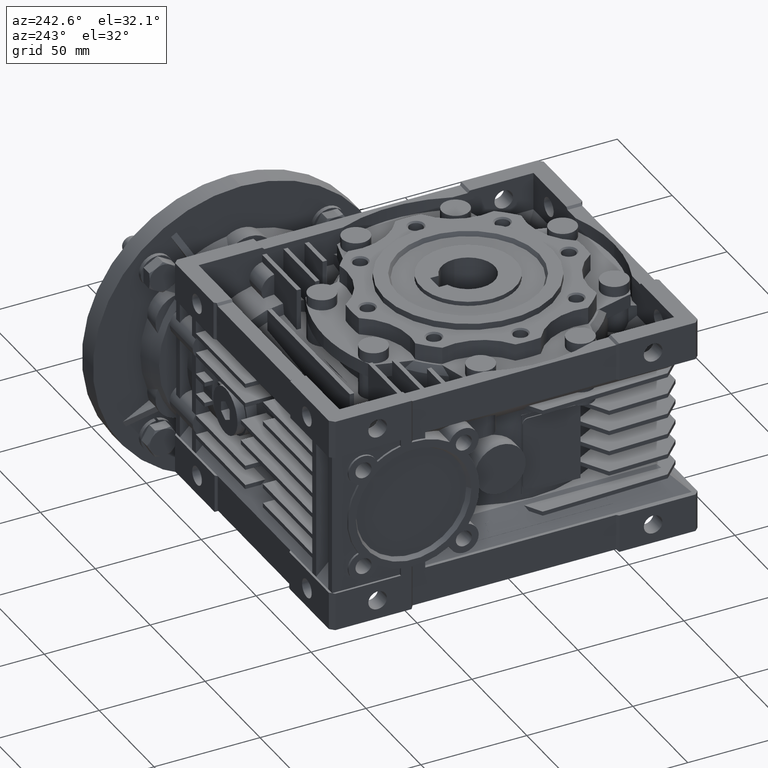
[diagram: clean part render]
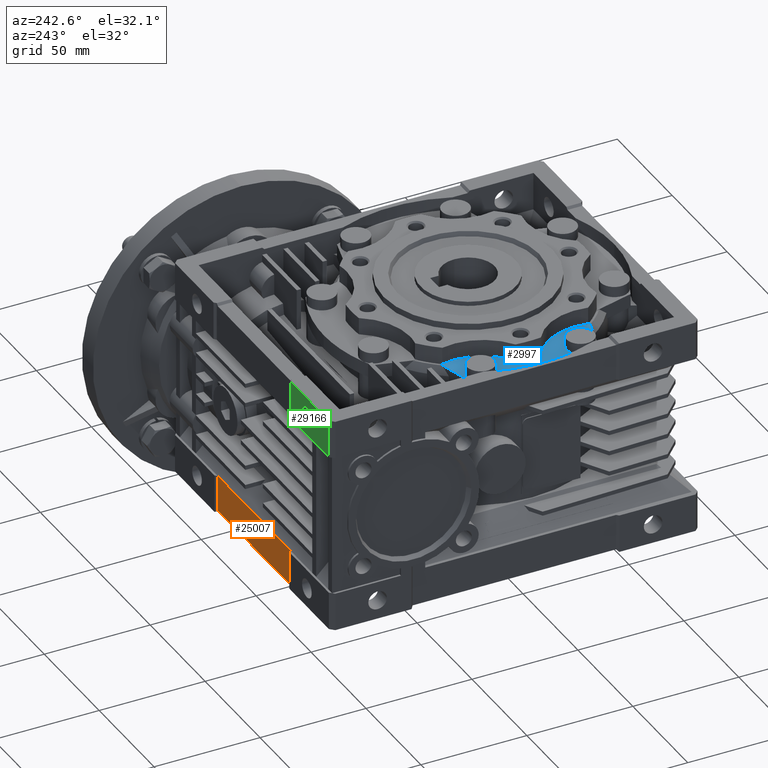
[diagram: same view with three faces highlighted in distinct colors, each labeled with its STEP entity id]
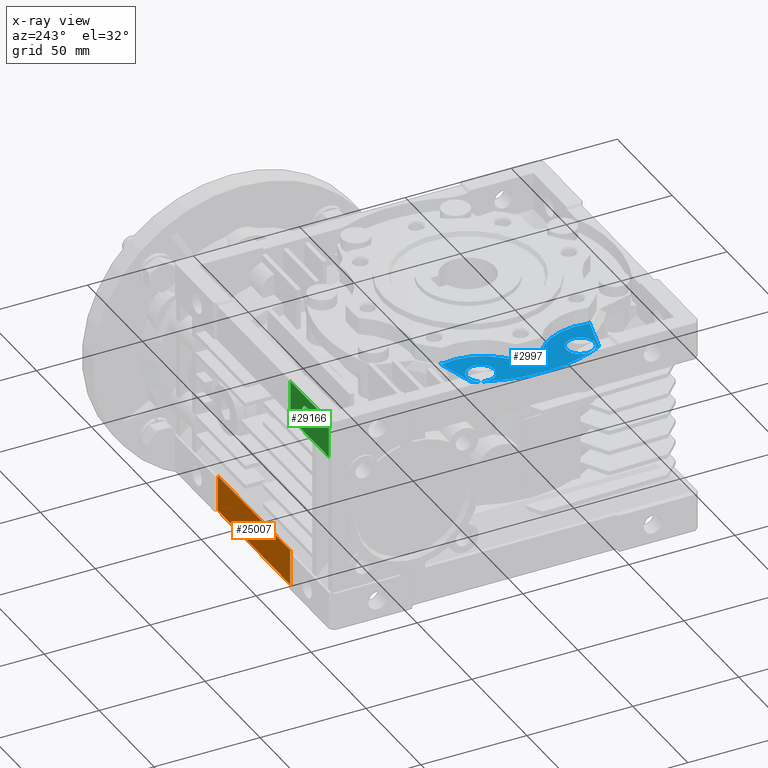
[diagram: x-ray of the same camera — body ghosted, the three highlighted faces saturated]
A machine part, auxiliary view with three faces highlighted in distinct colors.
The next image is the same camera in x-ray (body ghosted, the three faces saturated) — at least one of them is partly hidden behind the body in this view.
Their STEP definitions:

[orange] entity #25007 — the highlighted planar face has unit normal (-0, 1, 0).
#167 = EDGE_LOOP ( 'NONE', ( #5798, #12749, #15347, #39549 ) ) ;
#687 = CARTESIAN_POINT ( 'NONE',  ( -33.00000000000000000, 101.0000000000000000, -33.50000000000000000 ) ) ;
#1028 = LINE ( 'NONE', #38206, #40008 ) ;
#1096 = LINE ( 'NONE', #27349, #18338 ) ;
#2911 = CARTESIAN_POINT ( 'NONE',  ( 33.00000000000000000, 101.0000000000000000, -50.50000000000000000 ) ) ;
#3755 = VECTOR ( 'NONE', #34079, 1000.000000000000000 ) ;
#5208 = VERTEX_POINT ( 'NONE', #16098 ) ;
#5798 = ORIENTED_EDGE ( 'NONE', *, *, #23719, .F. ) ;
#6610 = LINE ( 'NONE', #32930, #8756 ) ;
#8756 = VECTOR ( 'NONE', #23086, 1000.000000000000000 ) ;
#9776 = AXIS2_PLACEMENT_3D ( 'NONE', #25798, #11739, #15325 ) ;
#11739 = DIRECTION ( 'NONE',  ( -0.000000000000000000, 1.000000000000000000, 0.000000000000000000 ) ) ;
#12177 = PLANE ( 'NONE',  #9776 ) ;
#12749 = ORIENTED_EDGE ( 'NONE', *, *, #19511, .T. ) ;
#13687 = VERTEX_POINT ( 'NONE', #2911 ) ;
#15325 = DIRECTION ( 'NONE',  ( 1.000000000000000000, 0.000000000000000000, 0.000000000000000000 ) ) ;
#15347 = ORIENTED_EDGE ( 'NONE', *, *, #20621, .T. ) ;
#15893 = VERTEX_POINT ( 'NONE', #37003 ) ;
#16098 = CARTESIAN_POINT ( 'NONE',  ( 33.00000000000000000, 101.0000000000000000, -33.50000000000000000 ) ) ;
#18338 = VECTOR ( 'NONE', #27142, 1000.000000000000000 ) ;
#19511 = EDGE_CURVE ( 'NONE', #42089, #5208, #1028, .T. ) ;
#20621 = EDGE_CURVE ( 'NONE', #5208, #13687, #6610, .T. ) ;
#23086 = DIRECTION ( 'NONE',  ( 0.000000000000000000, 0.000000000000000000, -1.000000000000000000 ) ) ;
#23719 = EDGE_CURVE ( 'NONE', #42089, #15893, #1096, .T. ) ;
#25007 = ADVANCED_FACE ( 'NONE', ( #42952 ), #12177, .T. ) ;
#25798 = CARTESIAN_POINT ( 'NONE',  ( 0.000000000000000000, 101.0000000000000000, 0.000000000000000000 ) ) ;
#27142 = DIRECTION ( 'NONE',  ( 0.000000000000000000, 0.000000000000000000, -1.000000000000000000 ) ) ;
#27349 = CARTESIAN_POINT ( 'NONE',  ( -33.00000000000000000, 101.0000000000000000, -33.50000000000000000 ) ) ;
#32930 = CARTESIAN_POINT ( 'NONE',  ( 33.00000000000000000, 101.0000000000000000, 0.000000000000000000 ) ) ;
#34079 = DIRECTION ( 'NONE',  ( 1.000000000000000000, 0.000000000000000000, 0.000000000000000000 ) ) ;
#34294 = LINE ( 'NONE', #34946, #3755 ) ;
#34946 = CARTESIAN_POINT ( 'NONE',  ( -33.00000000000000000, 101.0000000000000000, -50.50000000000000000 ) ) ;
#35336 = EDGE_CURVE ( 'NONE', #15893, #13687, #34294, .T. ) ;
#37003 = CARTESIAN_POINT ( 'NONE',  ( -33.00000000000000000, 101.0000000000000000, -50.50000000000000000 ) ) ;
#38206 = CARTESIAN_POINT ( 'NONE',  ( 0.000000000000000000, 101.0000000000000000, -33.50000000000000000 ) ) ;
#39549 = ORIENTED_EDGE ( 'NONE', *, *, #35336, .F. ) ;
#40008 = VECTOR ( 'NONE', #41991, 1000.000000000000000 ) ;
#41991 = DIRECTION ( 'NONE',  ( 1.000000000000000000, 0.000000000000000000, 0.000000000000000000 ) ) ;
#42089 = VERTEX_POINT ( 'NONE', #687 ) ;
#42952 = FACE_OUTER_BOUND ( 'NONE', #167, .T. ) ;

[blue] entity #2997 — the highlighted planar face has unit normal (0, 0, -1).
#341 = AXIS2_PLACEMENT_3D ( 'NONE', #14790, #28847, #31739 ) ;
#679 = VERTEX_POINT ( 'NONE', #11748 ) ;
#755 = LINE ( 'NONE', #21887, #5604 ) ;
#914 = CARTESIAN_POINT ( 'NONE',  ( 0.000000000000000000, 0.000000000000000000, 45.00000000000000000 ) ) ;
#1072 = CIRCLE ( 'NONE', #36647, 68.09999999999999432 ) ;
#2065 = DIRECTION ( 'NONE',  ( 0.000000000000000000, -1.000000000000000000, 0.000000000000000000 ) ) ;
#2855 = EDGE_CURVE ( 'NONE', #29941, #10582, #37759, .T. ) ;
#2997 = ADVANCED_FACE ( 'NONE', ( #17838, #31442, #14493 ), #28083, .F. ) ;
#3102 = VERTEX_POINT ( 'NONE', #8259 ) ;
#3226 = CARTESIAN_POINT ( 'NONE',  ( -42.18039281904054860, -35.29609697447340011, 45.00000000000000000 ) ) ;
#5037 = ORIENTED_EDGE ( 'NONE', *, *, #9739, .F. ) ;
#5604 = VECTOR ( 'NONE', #7409, 1000.000000000000227 ) ;
#5944 = DIRECTION ( 'NONE',  ( 0.000000000000000000, 1.000000000000000000, 0.000000000000000000 ) ) ;
#6746 = CARTESIAN_POINT ( 'NONE',  ( -61.01268310769489744, -30.25000000000000000, 45.00000000000000000 ) ) ;
#6811 = CIRCLE ( 'NONE', #11758, 27.00000000000000355 ) ;
#6837 = CARTESIAN_POINT ( 'NONE',  ( -56.81859124944409700, -23.53503109045299979, 45.00000000000000000 ) ) ;
#6839 = CARTESIAN_POINT ( 'NONE',  ( 1.387778780781449935E-14, -1.908195823574490013E-14, 45.00000000000000000 ) ) ;
#7202 = ORIENTED_EDGE ( 'NONE', *, *, #33687, .F. ) ;
#7409 = DIRECTION ( 'NONE',  ( 0.9659258262890680902, 0.2588190451025215166, 0.000000000000000000 ) ) ;
#8259 = CARTESIAN_POINT ( 'NONE',  ( -42.90242775894350302, 34.41484697610369636, 45.00000000000000000 ) ) ;
#8296 = CARTESIAN_POINT ( 'NONE',  ( -42.90242775894350302, -34.41484697610369636, 45.00000000000000000 ) ) ;
#8416 = CARTESIAN_POINT ( 'NONE',  ( -56.81859124944409700, 23.53503109045299979, 45.00000000000000000 ) ) ;
#9431 = DIRECTION ( 'NONE',  ( -1.027984282060329962E-15, -1.000000000000000000, 0.000000000000000000 ) ) ;
#9693 = DIRECTION ( 'NONE',  ( 0.000000000000000000, 0.000000000000000000, 1.000000000000000000 ) ) ;
#9739 = EDGE_CURVE ( 'NONE', #25859, #679, #755, .T. ) ;
#10582 = VERTEX_POINT ( 'NONE', #3226 ) ;
#10831 = AXIS2_PLACEMENT_3D ( 'NONE', #6837, #16867, #44027 ) ;
#11426 = EDGE_CURVE ( 'NONE', #40493, #25859, #1072, .T. ) ;
#11495 = ORIENTED_EDGE ( 'NONE', *, *, #2855, .F. ) ;
#11624 = CARTESIAN_POINT ( 'NONE',  ( -56.81859124944409700, -17.03503109045300334, 45.00000000000000000 ) ) ;
#11748 = CARTESIAN_POINT ( 'NONE',  ( -42.18039281904060545, 35.29609697447340011, 45.00000000000000000 ) ) ;
#11758 = AXIS2_PLACEMENT_3D ( 'NONE', #20523, #17196, #9431 ) ;
#12569 = CARTESIAN_POINT ( 'NONE',  ( 0.000000000000000000, 0.000000000000000000, 45.00000000000000000 ) ) ;
#12986 = VERTEX_POINT ( 'NONE', #17446 ) ;
#13928 = DIRECTION ( 'NONE',  ( 1.776356839400250070E-15, 1.000000000000000000, 0.000000000000000000 ) ) ;
#14493 = FACE_BOUND ( 'NONE', #18566, .T. ) ;
#14778 = EDGE_LOOP ( 'NONE', ( #5037, #41531, #20740, #11495, #36213, #42255, #40126, #7202 ) ) ;
#14790 = CARTESIAN_POINT ( 'NONE',  ( -69.29096493834650516, 28.70125742738170160, 45.00000000000000000 ) ) ;
#14940 = CARTESIAN_POINT ( 'NONE',  ( 0.000000000000000000, 0.000000000000000000, 45.00000000000000000 ) ) ;
#15752 = AXIS2_PLACEMENT_3D ( 'NONE', #42353, #32344, #2065 ) ;
#16465 = AXIS2_PLACEMENT_3D ( 'NONE', #25972, #9693, #5944 ) ;
#16867 = DIRECTION ( 'NONE',  ( 0.000000000000000000, 0.000000000000000000, 1.000000000000000000 ) ) ;
#16912 = CIRCLE ( 'NONE', #43239, 6.499999999999999112 ) ;
#17196 = DIRECTION ( 'NONE',  ( 0.000000000000000000, 0.000000000000000000, 1.000000000000000000 ) ) ;
#17446 = CARTESIAN_POINT ( 'NONE',  ( -54.67156926801519745, -6.001625927414619532, 45.00000000000000000 ) ) ;
#17838 = FACE_OUTER_BOUND ( 'NONE', #14778, .T. ) ;
#18191 = CARTESIAN_POINT ( 'NONE',  ( -54.67156926801519745, 6.001625927414619532, 45.00000000000000000 ) ) ;
#18566 = EDGE_LOOP ( 'NONE', ( #37331, #22024 ) ) ;
#18574 = AXIS2_PLACEMENT_3D ( 'NONE', #12569, #26190, #41464 ) ;
#18581 = EDGE_CURVE ( 'NONE', #18657, #23033, #37079, .T. ) ;
#18657 = VERTEX_POINT ( 'NONE', #11624 ) ;
#19248 = VERTEX_POINT ( 'NONE', #35128 ) ;
#20026 = CARTESIAN_POINT ( 'NONE',  ( -56.81859124944409700, -23.53503109045299979, 45.00000000000000000 ) ) ;
#20479 = LINE ( 'NONE', #41866, #33305 ) ;
#20523 = CARTESIAN_POINT ( 'NONE',  ( -69.29096493834650516, -28.70125742738170160, 45.00000000000000000 ) ) ;
#20740 = ORIENTED_EDGE ( 'NONE', *, *, #40901, .F. ) ;
#21005 = CARTESIAN_POINT ( 'NONE',  ( -61.01268310769489744, 30.25000000000000000, 45.00000000000000000 ) ) ;
#21887 = CARTESIAN_POINT ( 'NONE',  ( -61.01268310769489744, 30.25000000000000000, 45.00000000000000000 ) ) ;
#22014 = CARTESIAN_POINT ( 'NONE',  ( -56.81859124944409700, 30.03503109045299979, 45.00000000000000000 ) ) ;
#22024 = ORIENTED_EDGE ( 'NONE', *, *, #28968, .F. ) ;
#22187 = CIRCLE ( 'NONE', #39276, 6.499999999999999112 ) ;
#22228 = VERTEX_POINT ( 'NONE', #22014 ) ;
#23033 = VERTEX_POINT ( 'NONE', #38362 ) ;
#23745 = EDGE_CURVE ( 'NONE', #22228, #19248, #16912, .T. ) ;
#24209 = CIRCLE ( 'NONE', #28510, 55.00000000000000000 ) ;
#25859 = VERTEX_POINT ( 'NONE', #21005 ) ;
#25972 = CARTESIAN_POINT ( 'NONE',  ( -56.81859124944409700, 23.53503109045299979, 45.00000000000000000 ) ) ;
#26190 = DIRECTION ( 'NONE',  ( 0.000000000000000000, 0.000000000000000000, 1.000000000000000000 ) ) ;
#27341 = CIRCLE ( 'NONE', #341, 27.00000000000000000 ) ;
#27646 = ORIENTED_EDGE ( 'NONE', *, *, #23745, .F. ) ;
#27831 = DIRECTION ( 'NONE',  ( 0.000000000000000000, 0.000000000000000000, 1.000000000000000000 ) ) ;
#28083 = PLANE ( 'NONE',  #15752 ) ;
#28510 = AXIS2_PLACEMENT_3D ( 'NONE', #914, #27831, #34516 ) ;
#28779 = DIRECTION ( 'NONE',  ( 0.000000000000000000, 0.000000000000000000, 1.000000000000000000 ) ) ;
#28847 = DIRECTION ( 'NONE',  ( 0.000000000000000000, 0.000000000000000000, 1.000000000000000000 ) ) ;
#28968 = EDGE_CURVE ( 'NONE', #23033, #18657, #22187, .T. ) ;
#29941 = VERTEX_POINT ( 'NONE', #8296 ) ;
#30030 = DIRECTION ( 'NONE',  ( 0.000000000000000000, 0.000000000000000000, -1.000000000000000000 ) ) ;
#30965 = DIRECTION ( 'NONE',  ( -0.9659258262890685343, 0.2588190451025199068, 0.000000000000000000 ) ) ;
#31442 = FACE_BOUND ( 'NONE', #44073, .T. ) ;
#31739 = DIRECTION ( 'NONE',  ( 0.000000000000000000, -1.000000000000000000, 0.000000000000000000 ) ) ;
#31812 = DIRECTION ( 'NONE',  ( 0.000000000000000000, 1.000000000000000000, 0.000000000000000000 ) ) ;
#32344 = DIRECTION ( 'NONE',  ( 0.000000000000000000, 0.000000000000000000, -1.000000000000000000 ) ) ;
#32721 = DIRECTION ( 'NONE',  ( 0.000000000000000000, 0.000000000000000000, 1.000000000000000000 ) ) ;
#33305 = VECTOR ( 'NONE', #30965, 1000.000000000000000 ) ;
#33687 = EDGE_CURVE ( 'NONE', #679, #3102, #24209, .T. ) ;
#34174 = EDGE_CURVE ( 'NONE', #19248, #22228, #41325, .T. ) ;
#34516 = DIRECTION ( 'NONE',  ( 0.000000000000000000, 1.000000000000000000, 0.000000000000000000 ) ) ;
#35110 = EDGE_CURVE ( 'NONE', #43921, #12986, #36446, .T. ) ;
#35128 = CARTESIAN_POINT ( 'NONE',  ( -56.81859124944409700, 17.03503109045299979, 45.00000000000000000 ) ) ;
#35678 = DIRECTION ( 'NONE',  ( 0.000000000000000000, 1.000000000000000000, 0.000000000000000000 ) ) ;
#36213 = ORIENTED_EDGE ( 'NONE', *, *, #43037, .T. ) ;
#36313 = EDGE_CURVE ( 'NONE', #43921, #3102, #27341, .T. ) ;
#36446 = CIRCLE ( 'NONE', #40032, 55.00000000000000000 ) ;
#36647 = AXIS2_PLACEMENT_3D ( 'NONE', #6839, #30030, #13928 ) ;
#36747 = DIRECTION ( 'NONE',  ( 0.000000000000000000, 0.000000000000000000, 1.000000000000000000 ) ) ;
#37079 = CIRCLE ( 'NONE', #10831, 6.499999999999999112 ) ;
#37331 = ORIENTED_EDGE ( 'NONE', *, *, #18581, .F. ) ;
#37759 = CIRCLE ( 'NONE', #18574, 55.00000000000000000 ) ;
#37786 = ORIENTED_EDGE ( 'NONE', *, *, #34174, .F. ) ;
#38362 = CARTESIAN_POINT ( 'NONE',  ( -56.81859124944409700, -30.03503109045300334, 45.00000000000000000 ) ) ;
#39276 = AXIS2_PLACEMENT_3D ( 'NONE', #20026, #36747, #40520 ) ;
#40032 = AXIS2_PLACEMENT_3D ( 'NONE', #14940, #28779, #35678 ) ;
#40126 = ORIENTED_EDGE ( 'NONE', *, *, #36313, .T. ) ;
#40493 = VERTEX_POINT ( 'NONE', #6746 ) ;
#40520 = DIRECTION ( 'NONE',  ( 0.000000000000000000, 1.000000000000000000, 0.000000000000000000 ) ) ;
#40901 = EDGE_CURVE ( 'NONE', #10582, #40493, #20479, .T. ) ;
#41325 = CIRCLE ( 'NONE', #16465, 6.499999999999999112 ) ;
#41464 = DIRECTION ( 'NONE',  ( 0.000000000000000000, 1.000000000000000000, 0.000000000000000000 ) ) ;
#41531 = ORIENTED_EDGE ( 'NONE', *, *, #11426, .F. ) ;
#41866 = CARTESIAN_POINT ( 'NONE',  ( -42.18039281904049886, -35.29609697447340011, 45.00000000000000000 ) ) ;
#42255 = ORIENTED_EDGE ( 'NONE', *, *, #35110, .F. ) ;
#42353 = CARTESIAN_POINT ( 'NONE',  ( -1.734723475976809855E-15, -9.714451465470119729E-14, 45.00000000000000000 ) ) ;
#43037 = EDGE_CURVE ( 'NONE', #29941, #12986, #6811, .T. ) ;
#43239 = AXIS2_PLACEMENT_3D ( 'NONE', #8416, #32721, #31812 ) ;
#43921 = VERTEX_POINT ( 'NONE', #18191 ) ;
#44027 = DIRECTION ( 'NONE',  ( 0.000000000000000000, 1.000000000000000000, 0.000000000000000000 ) ) ;
#44073 = EDGE_LOOP ( 'NONE', ( #27646, #37786 ) ) ;

[green] entity #29166 — the highlighted planar face has unit normal (0, -1, 0).
#263 = VECTOR ( 'NONE', #5490, 1000.000000000000000 ) ;
#797 = VERTEX_POINT ( 'NONE', #36494 ) ;
#1268 = CARTESIAN_POINT ( 'NONE',  ( -50.00000000000000000, 102.0000000000000000, 46.89000000000000057 ) ) ;
#1835 = DIRECTION ( 'NONE',  ( 0.000000000000000000, 0.000000000000000000, -1.000000000000000000 ) ) ;
#3729 = CARTESIAN_POINT ( 'NONE',  ( -70.00000000000000000, 102.0000000000000000, 33.50000000000000000 ) ) ;
#4196 = FACE_BOUND ( 'NONE', #16269, .T. ) ;
#4876 = CARTESIAN_POINT ( 'NONE',  ( -50.00000000000000000, 102.0000000000000000, 38.11000000000000654 ) ) ;
#5251 = VERTEX_POINT ( 'NONE', #4876 ) ;
#5490 = DIRECTION ( 'NONE',  ( 0.000000000000000000, 0.000000000000000000, -1.000000000000000000 ) ) ;
#5526 = EDGE_CURVE ( 'NONE', #5251, #25450, #15219, .T. ) ;
#7601 = ORIENTED_EDGE ( 'NONE', *, *, #24251, .F. ) ;
#7717 = ORIENTED_EDGE ( 'NONE', *, *, #10437, .F. ) ;
#10437 = EDGE_CURVE ( 'NONE', #40340, #44083, #12341, .T. ) ;
#10863 = CARTESIAN_POINT ( 'NONE',  ( -50.00000000000000000, 102.0000000000000000, 42.50000000000000000 ) ) ;
#12341 = LINE ( 'NONE', #18164, #263 ) ;
#14327 = ORIENTED_EDGE ( 'NONE', *, *, #5526, .F. ) ;
#15219 = CIRCLE ( 'NONE', #23055, 4.389999999999997904 ) ;
#16269 = EDGE_LOOP ( 'NONE', ( #14327, #23712 ) ) ;
#16355 = VERTEX_POINT ( 'NONE', #23580 ) ;
#16918 = DIRECTION ( 'NONE',  ( 0.000000000000000000, 1.000000000000000000, 0.000000000000000000 ) ) ;
#17768 = DIRECTION ( 'NONE',  ( 0.000000000000000000, 0.000000000000000000, -1.000000000000000000 ) ) ;
#18164 = CARTESIAN_POINT ( 'NONE',  ( -70.00000000000000000, 102.0000000000000000, 33.50000000000000000 ) ) ;
#19477 = CARTESIAN_POINT ( 'NONE',  ( -70.00000000000000000, 102.0000000000000000, 51.50000000000000000 ) ) ;
#19552 = CIRCLE ( 'NONE', #33074, 4.389999999999997904 ) ;
#19662 = LINE ( 'NONE', #26549, #34396 ) ;
#20650 = PLANE ( 'NONE',  #21353 ) ;
#21353 = AXIS2_PLACEMENT_3D ( 'NONE', #34902, #38262, #17768 ) ;
#21409 = EDGE_CURVE ( 'NONE', #44083, #16355, #19662, .T. ) ;
#22042 = EDGE_CURVE ( 'NONE', #25450, #5251, #19552, .T. ) ;
#22735 = CARTESIAN_POINT ( 'NONE',  ( -50.00000000000000000, 102.0000000000000000, 42.50000000000000000 ) ) ;
#23055 = AXIS2_PLACEMENT_3D ( 'NONE', #22735, #28758, #1835 ) ;
#23580 = CARTESIAN_POINT ( 'NONE',  ( -35.00000000000000000, 102.0000000000000000, 33.50000000000000000 ) ) ;
#23712 = ORIENTED_EDGE ( 'NONE', *, *, #22042, .F. ) ;
#23833 = CARTESIAN_POINT ( 'NONE',  ( 0.000000000000000000, 102.0000000000000000, 51.50000000000000000 ) ) ;
#24251 = EDGE_CURVE ( 'NONE', #16355, #797, #42665, .T. ) ;
#25450 = VERTEX_POINT ( 'NONE', #1268 ) ;
#26273 = EDGE_LOOP ( 'NONE', ( #7601, #37962, #7717, #26298 ) ) ;
#26298 = ORIENTED_EDGE ( 'NONE', *, *, #28244, .T. ) ;
#26549 = CARTESIAN_POINT ( 'NONE',  ( -70.00000000000000000, 102.0000000000000000, 33.50000000000000000 ) ) ;
#28184 = CARTESIAN_POINT ( 'NONE',  ( -35.00000000000000000, 102.0000000000000000, 33.50000000000000000 ) ) ;
#28244 = EDGE_CURVE ( 'NONE', #40340, #797, #40560, .T. ) ;
#28456 = DIRECTION ( 'NONE',  ( 1.000000000000000000, 0.000000000000000000, 0.000000000000000000 ) ) ;
#28758 = DIRECTION ( 'NONE',  ( 0.000000000000000000, 1.000000000000000000, 0.000000000000000000 ) ) ;
#29166 = ADVANCED_FACE ( 'NONE', ( #34696, #4196 ), #20650, .F. ) ;
#31749 = DIRECTION ( 'NONE',  ( 0.000000000000000000, 0.000000000000000000, 1.000000000000000000 ) ) ;
#33037 = DIRECTION ( 'NONE',  ( 1.000000000000000000, 0.000000000000000000, 0.000000000000000000 ) ) ;
#33074 = AXIS2_PLACEMENT_3D ( 'NONE', #10863, #16918, #34054 ) ;
#34054 = DIRECTION ( 'NONE',  ( 0.000000000000000000, 0.000000000000000000, -1.000000000000000000 ) ) ;
#34396 = VECTOR ( 'NONE', #33037, 1000.000000000000000 ) ;
#34696 = FACE_OUTER_BOUND ( 'NONE', #26273, .T. ) ;
#34902 = CARTESIAN_POINT ( 'NONE',  ( -70.00000000000000000, 102.0000000000000000, 33.50000000000000000 ) ) ;
#36494 = CARTESIAN_POINT ( 'NONE',  ( -35.00000000000000000, 102.0000000000000000, 51.50000000000000000 ) ) ;
#37454 = VECTOR ( 'NONE', #31749, 1000.000000000000000 ) ;
#37962 = ORIENTED_EDGE ( 'NONE', *, *, #21409, .F. ) ;
#38262 = DIRECTION ( 'NONE',  ( 0.000000000000000000, -1.000000000000000000, 0.000000000000000000 ) ) ;
#40340 = VERTEX_POINT ( 'NONE', #19477 ) ;
#40560 = LINE ( 'NONE', #23833, #40608 ) ;
#40608 = VECTOR ( 'NONE', #28456, 1000.000000000000000 ) ;
#42665 = LINE ( 'NONE', #28184, #37454 ) ;
#44083 = VERTEX_POINT ( 'NONE', #3729 ) ;